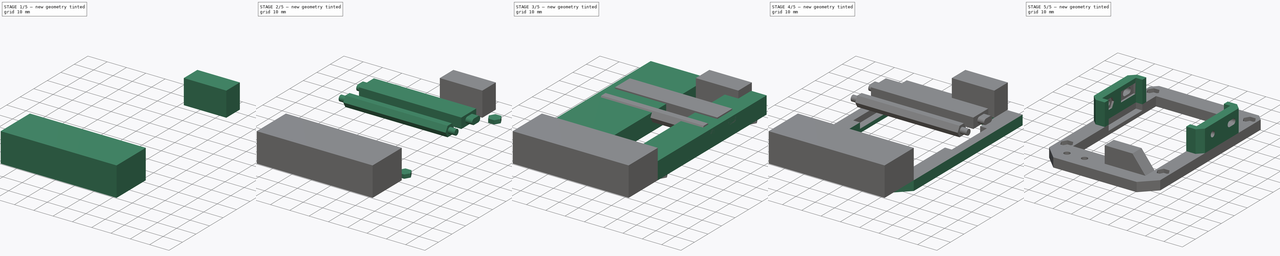
[diagram: build sequence overview — one tinted view per stage of 5, left to right]
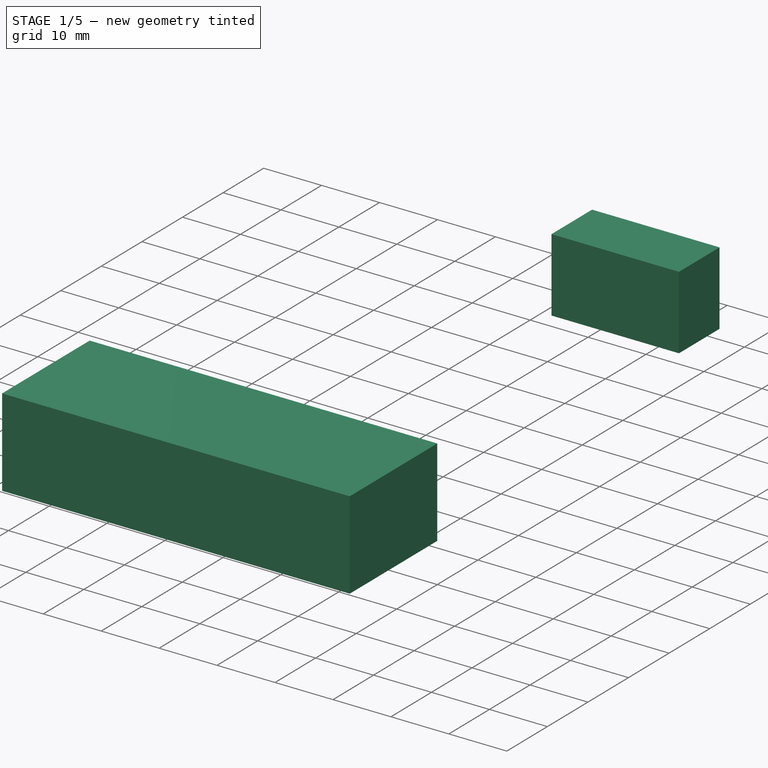
[diagram: stage 1 of 5 — iso view after this stage's code; geometry added in this stage tinted green]
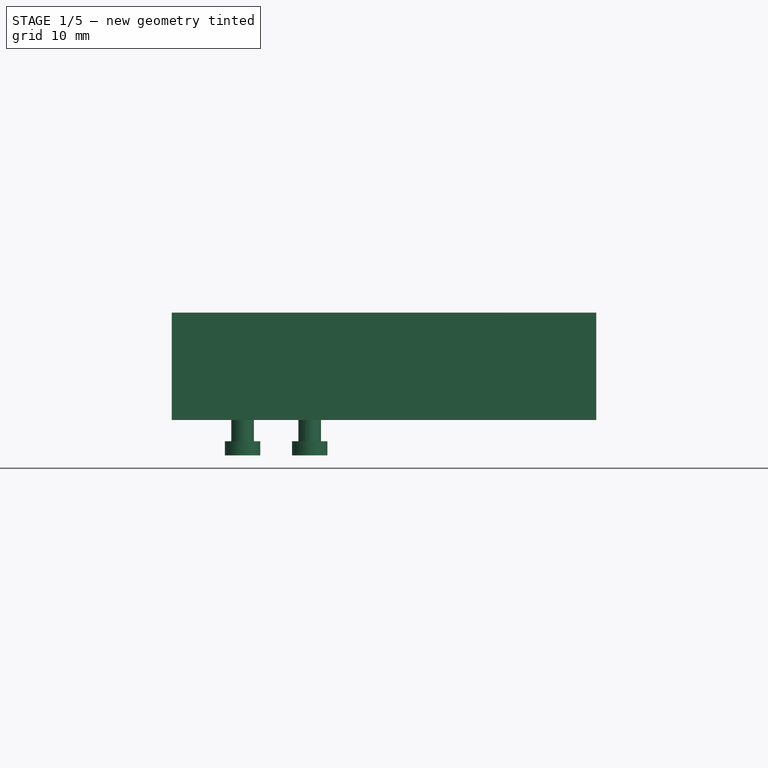
[diagram: stage 1 of 5 — front view after this stage's code; geometry added in this stage tinted green]
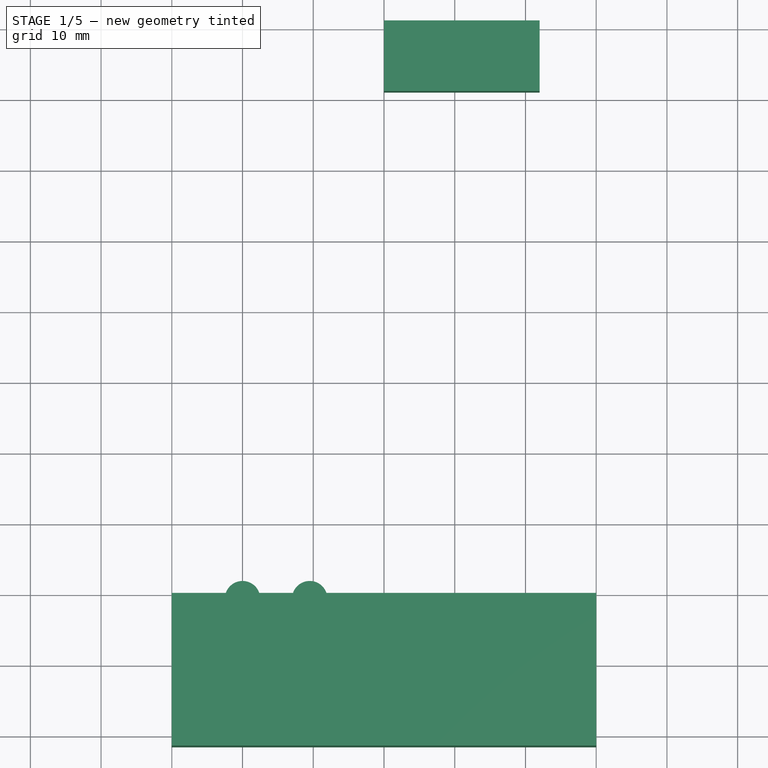
[diagram: stage 1 of 5 — top view after this stage's code; geometry added in this stage tinted green]
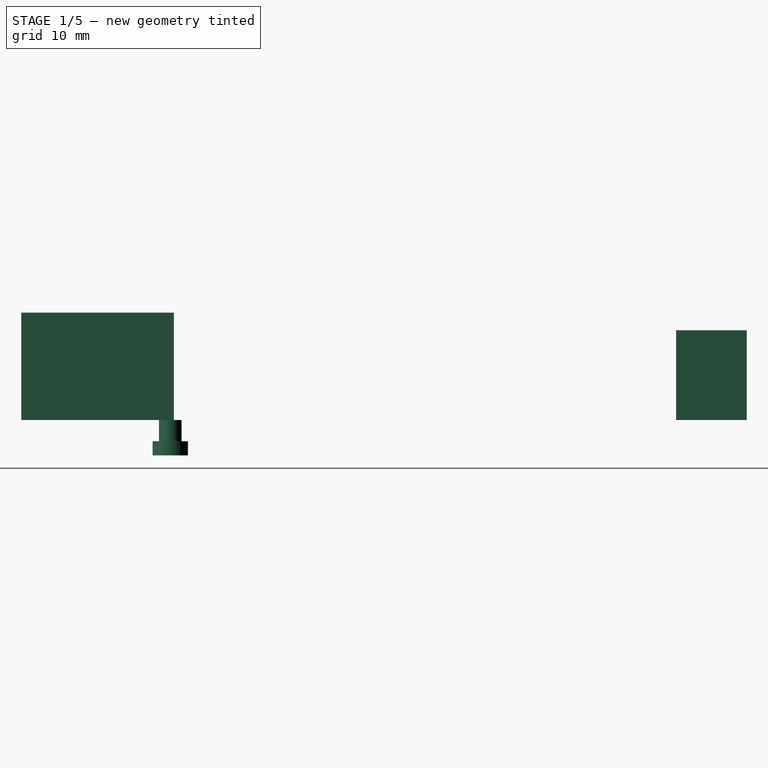
[diagram: stage 1 of 5 — right view after this stage's code; geometry added in this stage tinted green]
FCSTD DOCUMENT  (FreeCAD 0.16R6707 (Git))
Label: Peripheral
License: All rights reserved
LicenseURL: http://en.wikipedia.org/wiki/All_rights_reserved
objects: Sketcher::SketchObject×13, PartDesign::Pad×13, Part::MultiFuse×3, Drawing::FeatureViewPart×3, Part::Cut×2, PartDesign::Chamfer×1, Drawing::FeaturePage×1
note: 45 computed .brp shape members not serialized (recipe doc carries the construction recipe); baked Part::Feature solids carry a one-line shape summary decoded from their .brp

FEATURE [Sketcher::SketchObject] Sketch019  label="EndstopMountSK"
  sketch-geometry (2):
    g0: Circle CenterX=10 CenterY=-0.5 CenterZ=0 NormalX=0 NormalY=0 NormalZ=1 Radius=1.6
    g1: Circle CenterX=19.5 CenterY=-0.5 CenterZ=0 NormalX=0 NormalY=0 NormalZ=1 Radius=1.6
  constraints (6):
    c: Equal(g1,g0)
    c: Radius(g0) = 1.6
    c: DistanceX(g0,g1) = 9.5
    c: DistanceY(g0,g1) = 0
    c: DistanceX(g-1,g0) = 10
    c: DistanceY(g-1,g0) = -0.5
FEATURE [PartDesign::Pad] Pad012  label="EndstopMount"
  Length = 5
  Length2 = 100
  Sketch = -> Sketch019
  Type = 0
FEATURE [Sketcher::SketchObject] Sketch020
  sketch-geometry (2):
    g0: Circle CenterX=10 CenterY=-0.5 CenterZ=0 NormalX=0 NormalY=0 NormalZ=1 Radius=2.5
    g1: Circle CenterX=19.5 CenterY=-0.5 CenterZ=0 NormalX=0 NormalY=0 NormalZ=1 Radius=2.5
  constraints (6):
    c: DistanceX(g0,g1) = 9.5
    c: DistanceY(g1,g0) = 0
    c: DistanceX(g-1,g0) = 10
    c: DistanceY(g-1,g0) = -0.5
    c: Radius(g1) = 2.5
    c: Equal(g1,g0)
FEATURE [PartDesign::Pad] Pad013  label="EndtopFlush"
  Length = 2
  Length2 = 100
  Sketch = -> Sketch020
  Type = 0
FEATURE [Sketcher::SketchObject] Sketch021
  Placement = pos=(0,81,0) rot=(1,0,0;1.5708rad)
  sketch-geometry (4):
    g0: LineSegment StartX=30 StartY=17.705 StartZ=0 EndX=52 EndY=17.705 EndZ=0
    g1: LineSegment StartX=52 StartY=17.705 StartZ=0 EndX=52 EndY=5 EndZ=0
    g2: LineSegment StartX=52 StartY=5 StartZ=0 EndX=30 EndY=5 EndZ=0
    g3: LineSegment StartX=30 StartY=5 StartZ=0 EndX=30 EndY=17.705 EndZ=0
  constraints (11):
    c: Coincident(g0,g1)
    c: Coincident(g1,g2)
    c: Coincident(g2,g3)
    c: Coincident(g3,g0)
    c: Horizontal(g0)
    c: Horizontal(g2)
    c: Vertical(g1)
    c: Vertical(g3)
    c: DistanceY(g-1,g1) = 5
    c: DistanceX(g-1,g2) = 30
    c: DistanceX(g0,g0) = 22
FEATURE [PartDesign::Pad] Pad014
  Length = 10
  Length2 = 100
  Placement = pos=(0,81,0) rot=(1,0,0;1.5708rad)
  Sketch = -> Sketch021
  Type = 0
FEATURE [Sketcher::SketchObject] Sketch022
  Placement = pos=(0,0,0) rot=(0.57735,0.57735,0.57735;2.0944rad)
  sketch-geometry (4):
    g0: LineSegment StartX=-21.5839 StartY=20.1944 StartZ=0 EndX=0 EndY=20.1944 EndZ=0
    g1: LineSegment StartX=0 StartY=20.1944 StartZ=0 EndX=0 EndY=5 EndZ=0
    g2: LineSegment StartX=0 StartY=5 StartZ=0 EndX=-21.5839 EndY=5 EndZ=0
    g3: LineSegment StartX=-21.5839 StartY=5 StartZ=0 EndX=-21.5839 EndY=20.1944 EndZ=0
  constraints (10):
    c: Coincident(g0,g1)
    c: Coincident(g1,g2)
    c: Coincident(g2,g3)
    c: Coincident(g3,g0)
    c: Horizontal(g0)
    c: Horizontal(g2)
    c: Vertical(g1)
    c: Vertical(g3)
    c: PointOnObject(g1,g-2)
    c: DistanceY(g-1,g2) = 5
FEATURE [PartDesign::Pad] Pad015
  Length = 60
  Length2 = 100
  Placement = pos=(0,0,0) rot=(0.57735,0.57735,0.57735;2.0944rad)
  Sketch = -> Sketch022
  Type = 0
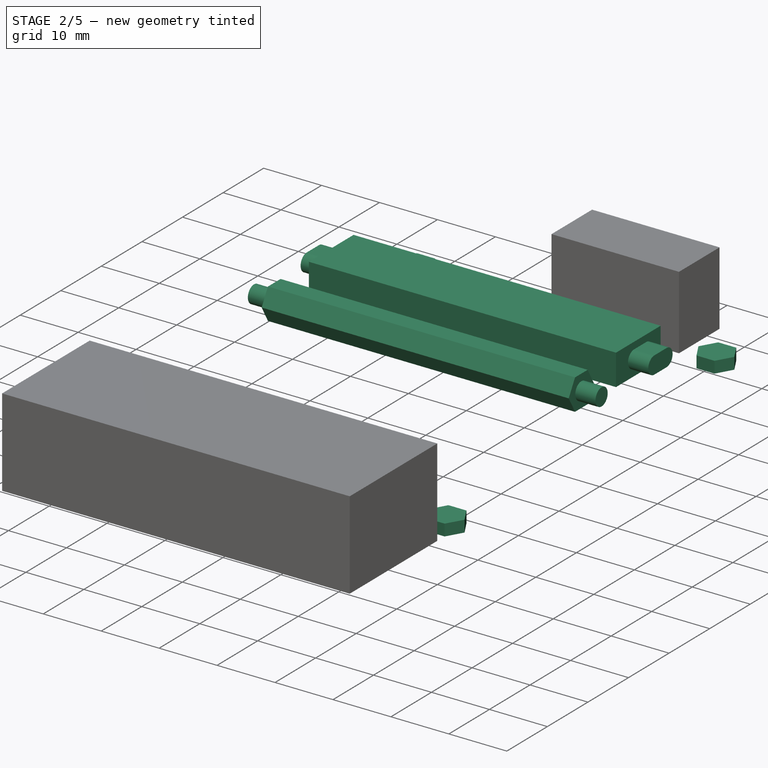
[diagram: stage 2 of 5 — iso view after this stage's code; geometry added in this stage tinted green]
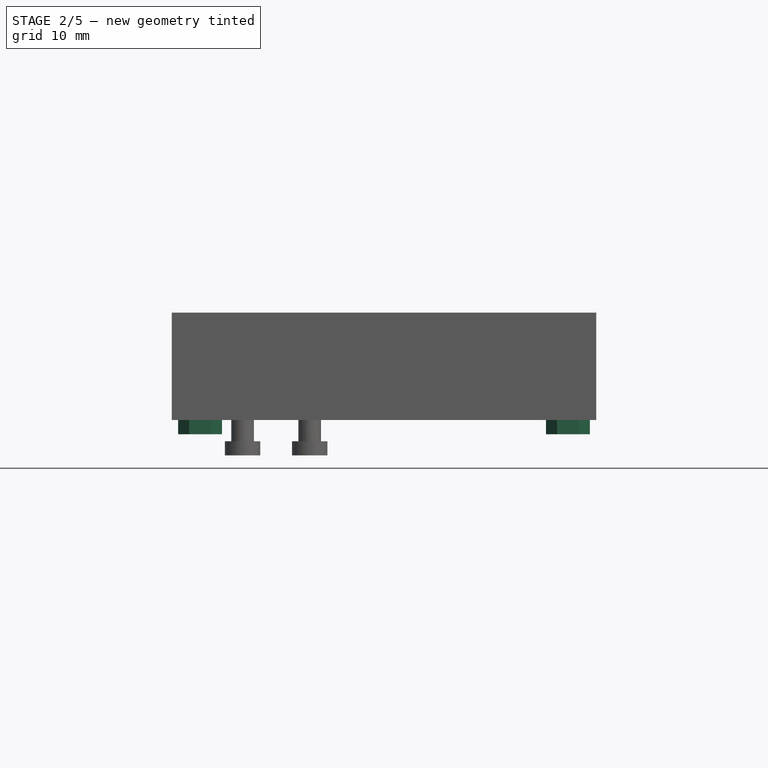
[diagram: stage 2 of 5 — front view after this stage's code; geometry added in this stage tinted green]
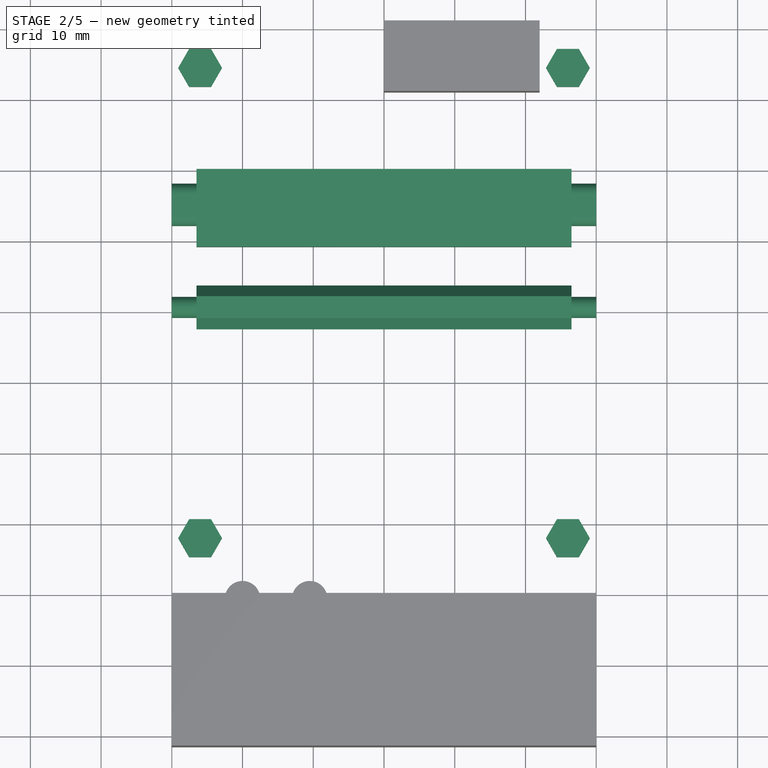
[diagram: stage 2 of 5 — top view after this stage's code; geometry added in this stage tinted green]
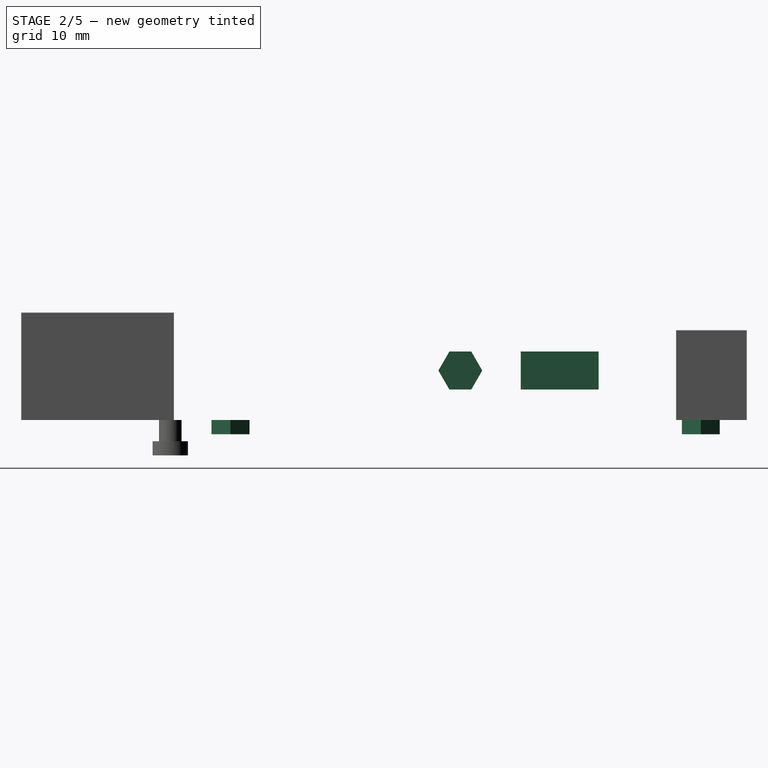
[diagram: stage 2 of 5 — right view after this stage's code; geometry added in this stage tinted green]
FEATURE [PartDesign::Pad] Pad008  label="BetlTensMount"
  Length = 60
  Length2 = 100
  Placement = pos=(0,0,0) rot=(0.57735,0.57735,0.57735;2.0944rad)
  Sketch = -> Sketch015
  Type = 0
FEATURE [Sketcher::SketchObject] Sketch006
  Placement = pos=(0,-9.25,3) rot=(0,0,1;0rad)
  sketch-geometry (28):
    g0: LineSegment StartX=5.55 StartY=86.4347 StartZ=0 EndX=2.45 EndY=86.4347 EndZ=0
    g1: LineSegment StartX=2.45 StartY=86.4347 StartZ=0 EndX=0.9 EndY=83.75 EndZ=0
    g2: LineSegment StartX=0.9 StartY=83.75 StartZ=0 EndX=2.45 EndY=81.0653 EndZ=0
    g3: LineSegment StartX=2.45 StartY=81.0653 StartZ=0 EndX=5.55 EndY=81.0653 EndZ=0
    g4: LineSegment StartX=5.55 StartY=81.0653 StartZ=0 EndX=7.1 EndY=83.75 EndZ=0
    g5: LineSegment StartX=7.1 StartY=83.75 StartZ=0 EndX=5.55 EndY=86.4347 EndZ=0
    g6: Circle [constr] CenterX=4 CenterY=83.75 CenterZ=0 NormalX=0 NormalY=0 NormalZ=1 Radius=3.1
    g7: LineSegment StartX=57.55 StartY=81.0653 StartZ=0 EndX=59.1 EndY=83.75 EndZ=0
    g8: LineSegment StartX=59.1 StartY=83.75 StartZ=0 EndX=57.55 EndY=86.4347 EndZ=0
    g9: LineSegment StartX=57.55 StartY=86.4347 StartZ=0 EndX=54.45 EndY=86.4347 EndZ=0
    g10: LineSegment StartX=54.45 StartY=86.4347 StartZ=0 EndX=52.9 EndY=83.75 EndZ=0
    g11: LineSegment StartX=52.9 StartY=83.75 StartZ=0 EndX=54.45 EndY=81.0653 EndZ=0
    g12: LineSegment StartX=54.45 StartY=81.0653 StartZ=0 EndX=57.55 EndY=81.0653 EndZ=0
    g13: Circle [constr] CenterX=56 CenterY=83.75 CenterZ=0 NormalX=0 NormalY=0 NormalZ=1 Radius=3.1
    g14: LineSegment StartX=0.9 StartY=17.25 StartZ=0 EndX=2.45 EndY=14.5653 EndZ=0
    g15: LineSegment StartX=2.45 StartY=14.5653 StartZ=0 EndX=5.55 EndY=14.5653 EndZ=0
    g16: LineSegment StartX=5.55 StartY=14.5653 StartZ=0 EndX=7.1 EndY=17.25 EndZ=0
    g17: LineSegment StartX=7.1 StartY=17.25 StartZ=0 EndX=5.55 EndY=19.9347 EndZ=0
    g18: LineSegment StartX=5.55 StartY=19.9347 StartZ=0 EndX=2.45 EndY=19.9347 EndZ=0
    g19: LineSegment StartX=2.45 StartY=19.9347 StartZ=0 EndX=0.9 EndY=17.25 EndZ=0
    g20: Circle [constr] CenterX=4 CenterY=17.25 CenterZ=0 NormalX=0 NormalY=0 NormalZ=1 Radius=3.1
    g21: LineSegment StartX=52.9 StartY=17.25 StartZ=0 EndX=54.45 EndY=14.5653 EndZ=0
    g22: LineSegment StartX=54.45 StartY=14.5653 StartZ=0 EndX=57.55 EndY=14.5653 EndZ=0
    g23: LineSegment StartX=57.55 StartY=14.5653 StartZ=0 EndX=59.1 EndY=17.25 EndZ=0
    g24: LineSegment StartX=59.1 StartY=17.25 StartZ=0 EndX=57.55 EndY=19.9347 EndZ=0
    g25: LineSegment StartX=57.55 StartY=19.9347 StartZ=0 EndX=54.45 EndY=19.9347 EndZ=0
    g26: LineSegment StartX=54.45 StartY=19.9347 StartZ=0 EndX=52.9 EndY=17.25 EndZ=0
    g27: Circle [constr] CenterX=56 CenterY=17.25 CenterZ=0 NormalX=0 NormalY=0 NormalZ=1 Radius=3.1
  constraints (68):
    c: Coincident(g0,g1)
    c: Coincident(g1,g2)
    c: Coincident(g2,g3)
    c: Coincident(g3,g4)
    c: Coincident(g4,g5)
    c: Coincident(g5,g0)
    c: Equal(g0, g1-g5) x5
    c: PointOnObject(g0,g6)
    c: PointOnObject(g1,g6)
    c: PointOnObject(g2,g6)
    c: PointOnObject(g3,g6)
    c: PointOnObject(g4,g6)
    c: PointOnObject(g5,g6)
    c: Coincident(g7,g8)
    c: Coincident(g8,g9)
    c: Coincident(g9,g10)
    c: Coincident(g10,g11)
    c: Coincident(g11,g12)
    c: Coincident(g12,g7)
    c: Equal(g7, g8-g12) x5
    c: PointOnObject(g7,g13)
    c: PointOnObject(g8,g13)
    c: PointOnObject(g9,g13)
    c: PointOnObject(g10,g13)
    c: PointOnObject(g11,g13)
    c: PointOnObject(g12,g13)
    c: Coincident(g14,g15)
    c: Coincident(g15,g16)
    c: Coincident(g16,g17)
    c: Coincident(g17,g18)
    c: Coincident(g18,g19)
    c: Coincident(g19,g14)
    c: Equal(g14, g15-g19) x5
    c: PointOnObject(g14,g20)
    c: PointOnObject(g15,g20)
    c: PointOnObject(g16,g20)
    c: PointOnObject(g17,g20)
    c: PointOnObject(g18,g20)
    c: PointOnObject(g19,g20)
    c: Coincident(g21,g22)
    c: Coincident(g22,g23)
    c: Coincident(g23,g24)
    c: Coincident(g24,g25)
    c: Coincident(g25,g26)
    c: Coincident(g26,g21)
    c: Equal(g21, g22-g26) x5
    c: PointOnObject(g21,g27)
    c: PointOnObject(g22,g27)
    c: PointOnObject(g23,g27)
    c: PointOnObject(g24,g27)
    c: PointOnObject(g25,g27)
    c: PointOnObject(g26,g27)
    c: DistanceY(g-1,g20) = 17.25
    c: DistanceX(g-1,g20) = 4
    c: DistanceX(g20,g27) = 52
    c: DistanceY(g27,g20) = 0
    c: DistanceX(g20,g6) = 0
    c: DistanceY(g20,g6) = 66.5
    c: DistanceY(g13,g6) = 0
    c: DistanceX(g27,g13) = 0
    c: Radius(g20) = 3.1
    c: Equal(g20,g27)
    c: Equal(g20,g13)
    c: Equal(g20,g6)
    c: Parallel(g18,g25)
    c: Parallel(g25,g0)
    c: Parallel(g0,g9)
    c: Parallel(g9,g-1)
FEATURE [PartDesign::Pad] Pad005  label="NutFlush"
  Length = 2
  Length2 = 100
  Placement = pos=(0,-9.25,3) rot=(0,0,1;0rad)
  Sketch = -> Sketch006
  Type = 0
FEATURE [Sketcher::SketchObject] Sketch018
  Placement = pos=(30,0,0) rot=(0.57735,0.57735,0.57735;2.0944rad)
  sketch-geometry (11):
    g0: LineSegment StartX=42.05 StartY=9.31532 StartZ=0 EndX=43.6 EndY=12 EndZ=0
    g1: LineSegment StartX=43.6 StartY=12 StartZ=0 EndX=42.05 EndY=14.6847 EndZ=0
    g2: LineSegment StartX=42.05 StartY=14.6847 StartZ=0 EndX=38.95 EndY=14.6847 EndZ=0
    g3: LineSegment StartX=38.95 StartY=14.6847 StartZ=0 EndX=37.4 EndY=12 EndZ=0
    g4: LineSegment StartX=37.4 StartY=12 StartZ=0 EndX=38.95 EndY=9.31532 EndZ=0
    g5: LineSegment StartX=38.95 StartY=9.31532 StartZ=0 EndX=42.05 EndY=9.31532 EndZ=0
    g6: Circle [constr] CenterX=40.5 CenterY=12 CenterZ=0 NormalX=0 NormalY=0 NormalZ=1 Radius=3.1
    g7: LineSegment StartX=49.05 StartY=14.6847 StartZ=0 EndX=60.05 EndY=14.6847 EndZ=0
    g8: LineSegment StartX=60.05 StartY=14.6847 StartZ=0 EndX=60.05 EndY=9.31532 EndZ=0
    g9: LineSegment StartX=60.05 StartY=9.31532 StartZ=0 EndX=49.05 EndY=9.31532 EndZ=0
    g10: LineSegment StartX=49.05 StartY=9.31532 StartZ=0 EndX=49.05 EndY=14.6847 EndZ=0
  constraints (29):
    c: Coincident(g0,g1)
    c: Coincident(g1,g2)
    c: Coincident(g2,g3)
    c: Coincident(g3,g4)
    c: Coincident(g4,g5)
    c: Coincident(g5,g0)
    c: Equal(g0, g1-g5) x5
    c: PointOnObject(g0,g6)
    c: PointOnObject(g1,g6)
    c: PointOnObject(g2,g6)
    c: PointOnObject(g3,g6)
    c: PointOnObject(g4,g6)
    c: PointOnObject(g5,g6)
    c: Coincident(g7,g8)
    c: Coincident(g8,g9)
    c: Coincident(g9,g10)
    c: Coincident(g10,g7)
    c: Horizontal(g7)
    c: Horizontal(g9)
    c: Vertical(g8)
    c: Vertical(g10)
    c: DistanceX(g-1,g6) = 40.5
    c: DistanceY(g-1,g6) = 12
    c: Parallel(g5,g-1)
    c: DistanceY(g9,g0) = 0
    c: DistanceY(g1,g7) = 0
    c: Radius(g6) = 3.1
    c: DistanceX(g7,g7) = 11
    c: DistanceX(g1,g7) = 7
FEATURE [PartDesign::Pad] Pad011  label="BeltTensionFlush"
  Length = 53
  Length2 = 100
  Midplane = true
  Placement = pos=(30,0,0) rot=(0.57735,0.57735,0.57735;2.0944rad)
  Sketch = -> Sketch018
  Type = 0
FEATURE [Part::MultiFuse] Fusion002  label="CutBlock02"
  Shapes = -> [Pad015,Pad014,Pad013,Pad008,Pad012,Pad005,Pad011]
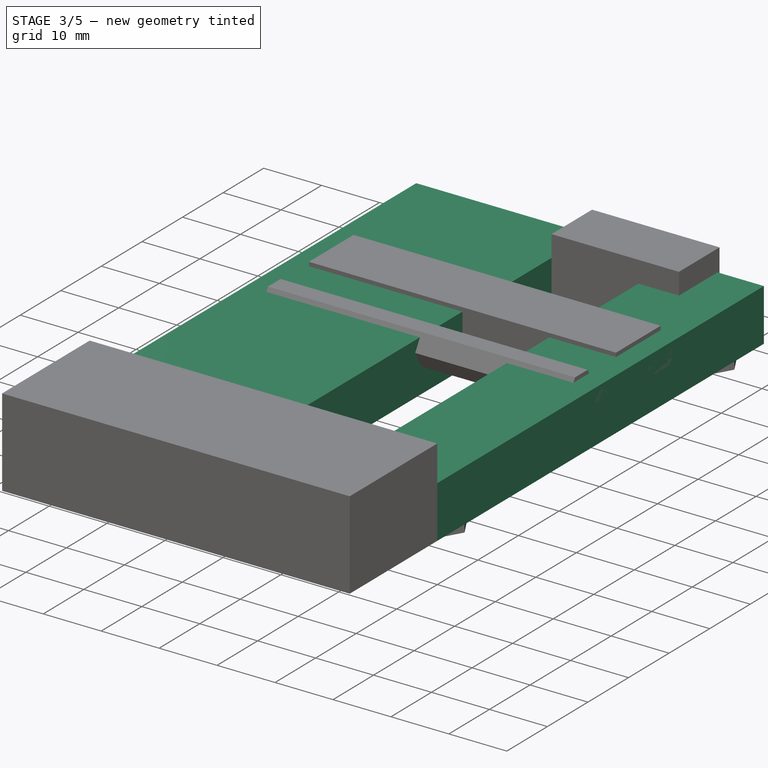
[diagram: stage 3 of 5 — iso view after this stage's code; geometry added in this stage tinted green]
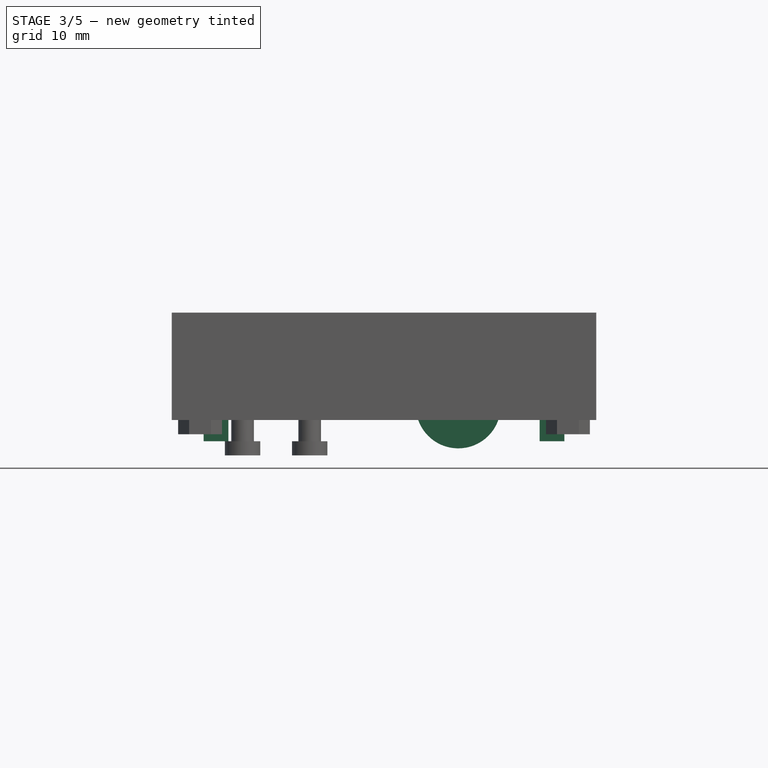
[diagram: stage 3 of 5 — front view after this stage's code; geometry added in this stage tinted green]
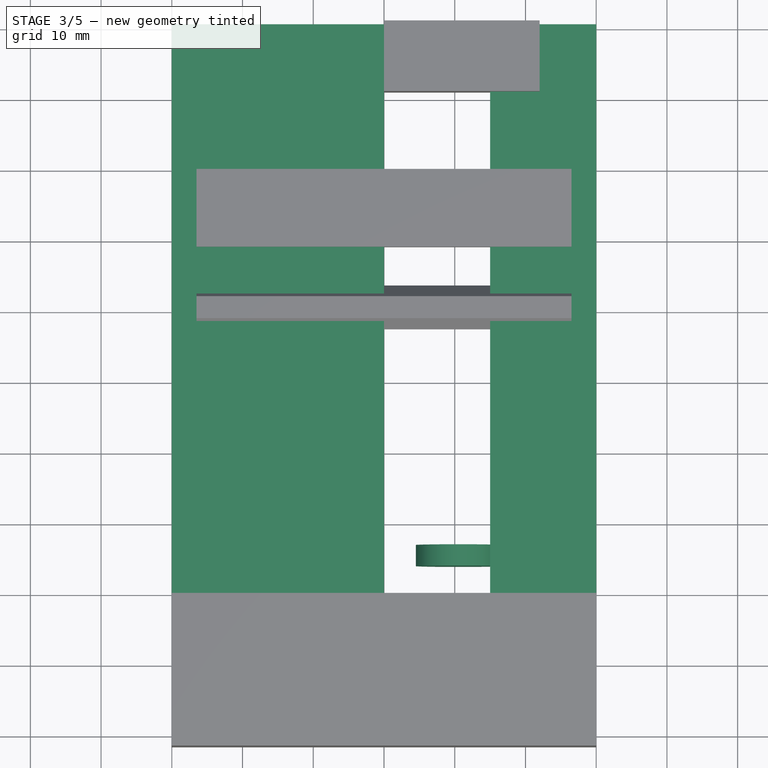
[diagram: stage 3 of 5 — top view after this stage's code; geometry added in this stage tinted green]
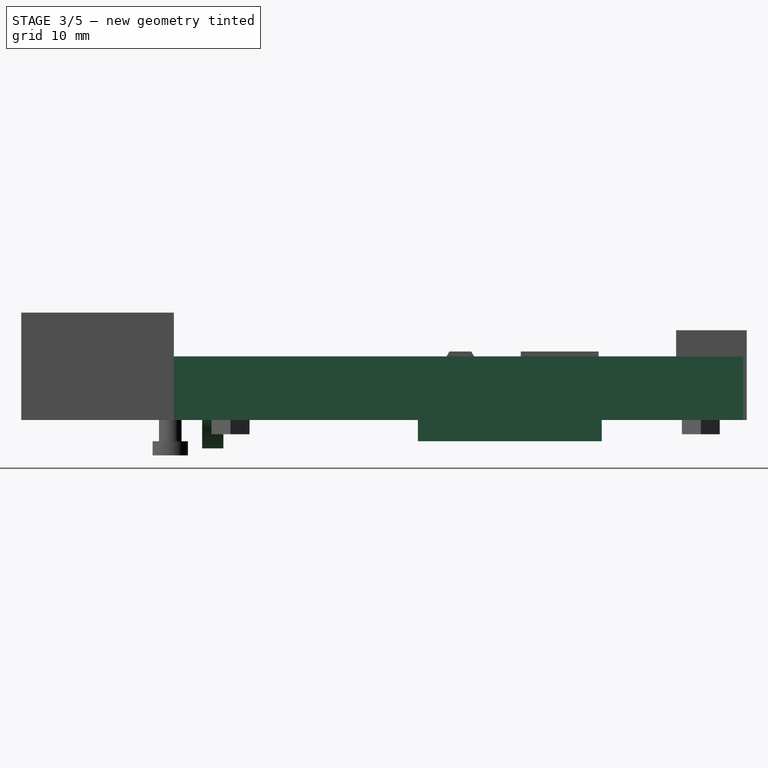
[diagram: stage 3 of 5 — right view after this stage's code; geometry added in this stage tinted green]
FEATURE [Sketcher::SketchObject] Sketch009  label="ProfileSK"
  Placement = pos=(0,0,0) rot=(1,0,0;1.5708rad)
  sketch-geometry (8):
    g0: LineSegment StartX=0 StartY=5 StartZ=0 EndX=30 EndY=5 EndZ=0
    g1: LineSegment StartX=30 StartY=5 StartZ=0 EndX=30 EndY=14 EndZ=0
    g2: LineSegment StartX=30 StartY=14 StartZ=0 EndX=0 EndY=14 EndZ=0
    g3: LineSegment StartX=0 StartY=14 StartZ=0 EndX=0 EndY=5 EndZ=0
    g4: LineSegment StartX=52 StartY=5 StartZ=0 EndX=45 EndY=14 EndZ=0
    g5: LineSegment StartX=45 StartY=14 StartZ=0 EndX=60 EndY=14 EndZ=0
    g6: LineSegment StartX=60 StartY=14 StartZ=0 EndX=60 EndY=5 EndZ=0
    g7: LineSegment StartX=60 StartY=5 StartZ=0 EndX=52 EndY=5 EndZ=0
  constraints (23):
    c: Coincident(g0,g1)
    c: Coincident(g1,g2)
    c: Horizontal(g2)
    c: Coincident(g2,g3)
    c: Coincident(g4,g5)
    c: Horizontal(g5)
    c: Coincident(g5,g6)
    c: Coincident(g6,g7)
    c: Coincident(g7,g4)
    c: Coincident(g3,g0)
    c: Vertical(g3)
    c: Horizontal(g0)
    c: Vertical(g6)
    c: Horizontal(g7)
    c: PointOnObject(g2,g-2)
    c: DistanceY(g-1,g2) = 14
    c: DistanceY(g-1,g5) = 14
    c: Equal(g6,g3)
    c: DistanceX(g-1,g6) = 60
    c: DistanceY(g3,g3) = 9
    c: DistanceX(g2,g2) = 30
    c: Equal(g0,g2)
    c: DistanceX(g5,g5) = 15
FEATURE [PartDesign::Pad] Pad002  label="Profile"
  Length = 80.5
  Length2 = 100
  Placement = pos=(0,0,0) rot=(1,0,0;1.5708rad)
  Reversed = true
  Sketch = -> Sketch009
  Type = 0
FEATURE [Sketcher::SketchObject] Sketch010  label="SpringSK"
  Placement = pos=(0,7,0) rot=(1,0,0;1.5708rad)
  sketch-geometry (1):
    g0: Circle CenterX=40.5 CenterY=7 CenterZ=0 NormalX=0 NormalY=0 NormalZ=1 Radius=6
  constraints (3):
    c: Radius(g0) = 6
    c: DistanceX(g-1,g0) = 40.5
    c: DistanceY(g-1,g0) = 7
FEATURE [PartDesign::Pad] Pad003  label="SpringHole"
  Length = 3
  Length2 = 100
  Placement = pos=(0,7,0) rot=(1,0,0;1.5708rad)
  Sketch = -> Sketch010
  Type = 0
FEATURE [Sketcher::SketchObject] Sketch013  label="BeltMountSK"
  Placement = pos=(0,0,5) rot=(0,0,1;0rad)
  sketch-geometry (8):
    g0: LineSegment StartX=4.5 StartY=60.5 StartZ=0 EndX=8 EndY=60.5 EndZ=0
    g1: LineSegment StartX=8 StartY=60.5 StartZ=0 EndX=8 EndY=34.5 EndZ=0
    g2: LineSegment StartX=8 StartY=34.5 StartZ=0 EndX=4.5 EndY=34.5 EndZ=0
    g3: LineSegment StartX=4.5 StartY=34.5 StartZ=0 EndX=4.5 EndY=60.5 EndZ=0
    g4: LineSegment StartX=52 StartY=60.5 StartZ=0 EndX=55.5 EndY=60.5 EndZ=0
    g5: LineSegment StartX=55.5 StartY=60.5 StartZ=0 EndX=55.5 EndY=34.5 EndZ=0
    g6: LineSegment StartX=55.5 StartY=34.5 StartZ=0 EndX=52 EndY=34.5 EndZ=0
    g7: LineSegment StartX=52 StartY=34.5 StartZ=0 EndX=52 EndY=60.5 EndZ=0
  constraints (24):
    c: Coincident(g0,g1)
    c: Coincident(g1,g2)
    c: Coincident(g2,g3)
    c: Coincident(g3,g0)
    c: Horizontal(g0)
    c: Horizontal(g2)
    c: Vertical(g1)
    c: Vertical(g3)
    c: Coincident(g4,g5)
    c: Coincident(g5,g6)
    c: Coincident(g6,g7)
    c: Coincident(g7,g4)
    c: Horizontal(g4)
    c: Horizontal(g6)
    c: Vertical(g5)
    c: Vertical(g7)
    c: DistanceX(g0,g0) = 3.5
    c: Equal(g4,g0)
    c: DistanceY(g-1,g2) = 34.5
    c: DistanceX(g-1,g2) = 4.5
    c: DistanceY(g6,g1) = 0
    c: DistanceX(g1,g6) = 44
    c: DistanceY(g1,g1) = 26
    c: Equal(g7,g1)
FEATURE [PartDesign::Pad] Pad006  label="BeltTensioner"
  Length = 3
  Length2 = 100
  Placement = pos=(0,0,5) rot=(0,0,1;0rad)
  Reversed = true
  Sketch = -> Sketch013
  Type = 0
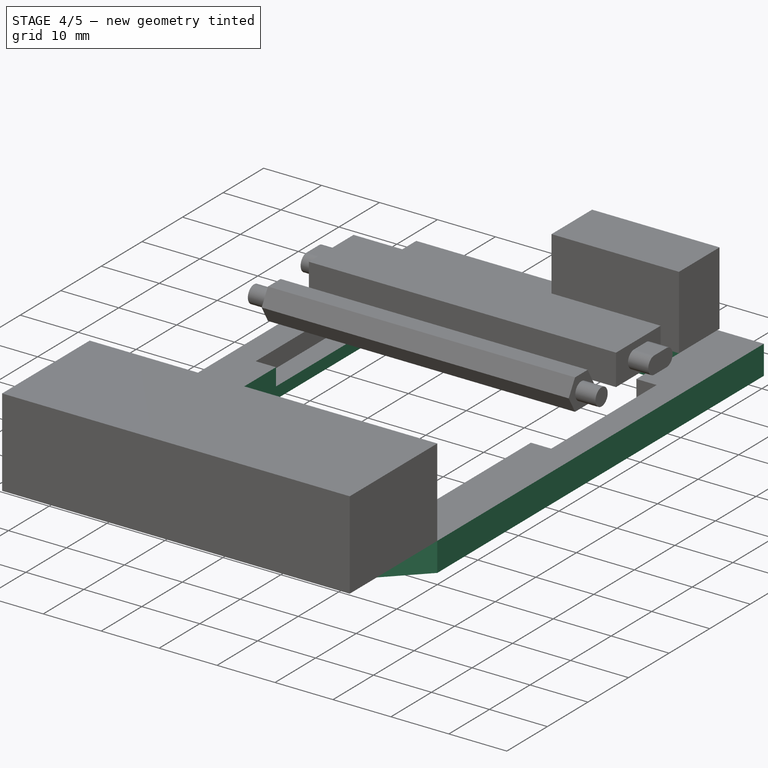
[diagram: stage 4 of 5 — iso view after this stage's code; geometry added in this stage tinted green]
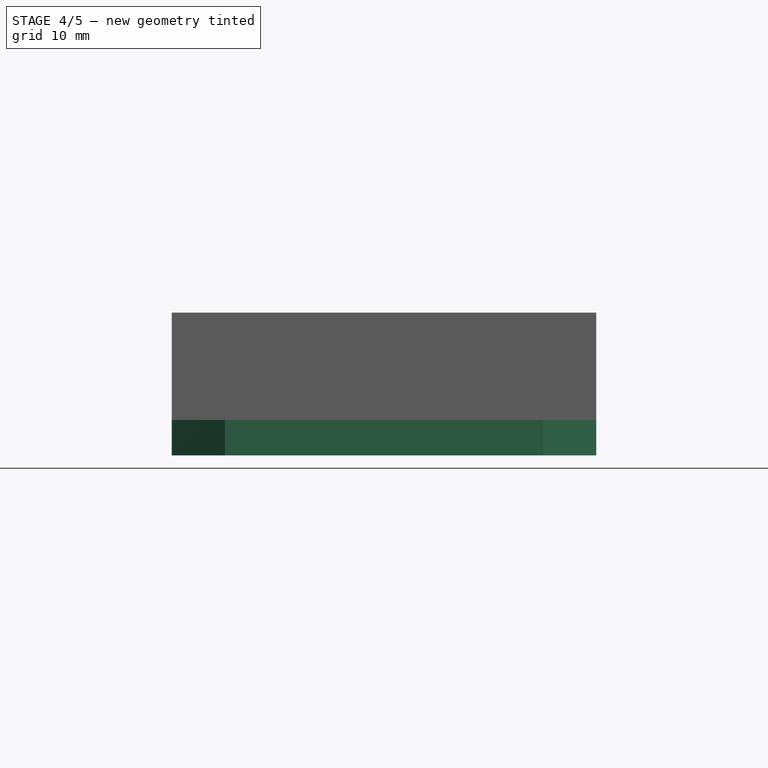
[diagram: stage 4 of 5 — front view after this stage's code; geometry added in this stage tinted green]
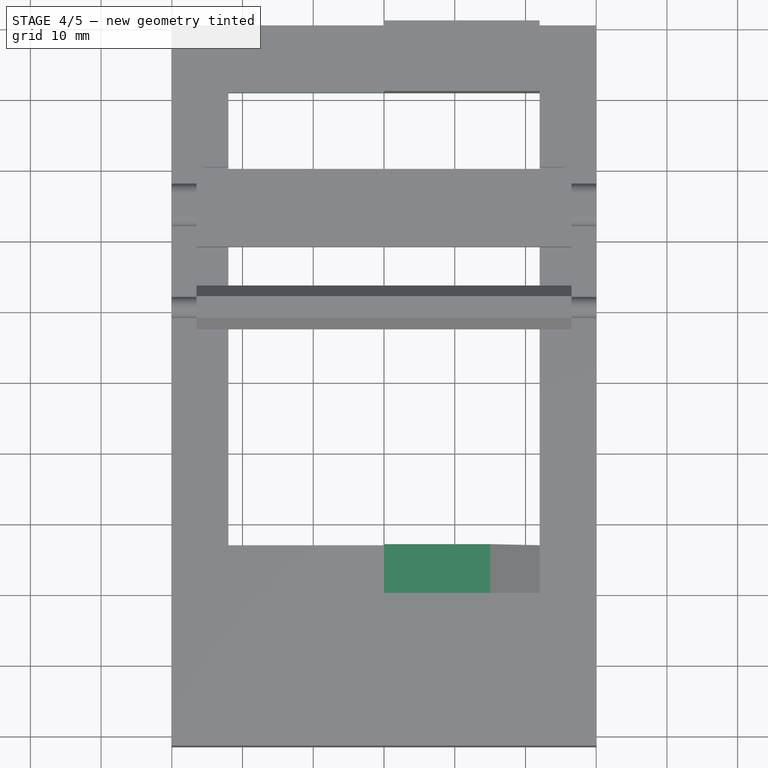
[diagram: stage 4 of 5 — top view after this stage's code; geometry added in this stage tinted green]
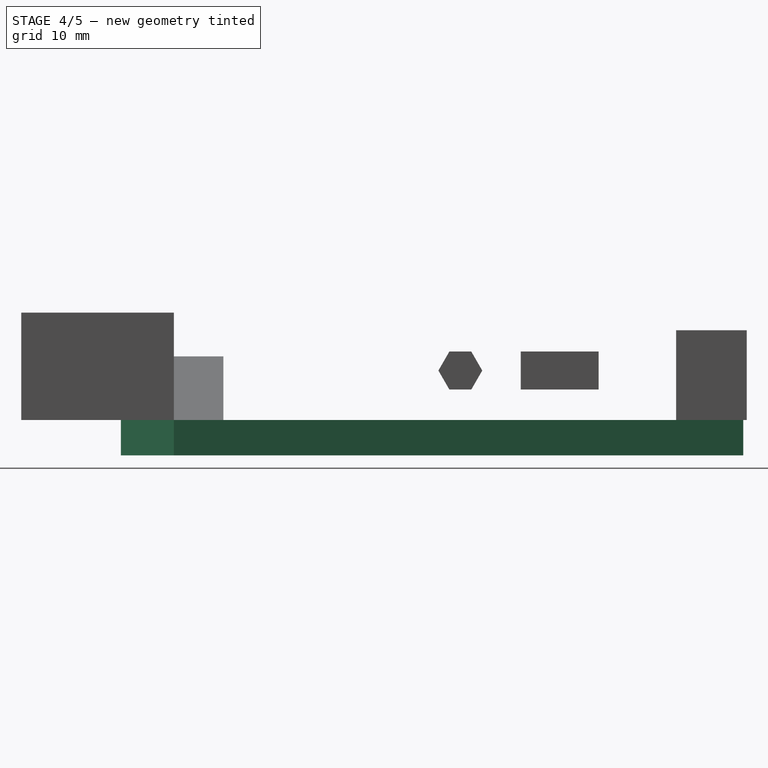
[diagram: stage 4 of 5 — right view after this stage's code; geometry added in this stage tinted green]
FEATURE [Sketcher::SketchObject] Sketch  label="BaseSK"
  sketch-geometry (10):
    g0: LineSegment StartX=8 StartY=71 StartZ=0 EndX=8 EndY=7 EndZ=0
    g1: LineSegment StartX=8 StartY=7 StartZ=0 EndX=52 EndY=7 EndZ=0
    g2: LineSegment StartX=52 StartY=7 StartZ=0 EndX=52 EndY=71 EndZ=0
    g3: LineSegment StartX=60 StartY=80.5 StartZ=0 EndX=60 EndY=0 EndZ=0
    g4: LineSegment StartX=0 StartY=0 StartZ=0 EndX=0 EndY=80.5 EndZ=0
    g5: LineSegment StartX=0 StartY=80.5 StartZ=0 EndX=60 EndY=80.5 EndZ=0
    g6: LineSegment StartX=8 StartY=71 StartZ=0 EndX=52 EndY=71 EndZ=0
    g7: LineSegment StartX=0 StartY=0 StartZ=0 EndX=7.5 EndY=-7.5 EndZ=0
    g8: LineSegment StartX=7.5 StartY=-7.5 StartZ=0 EndX=52.5 EndY=-7.5 EndZ=0
    g9: LineSegment StartX=52.5 StartY=-7.5 StartZ=0 EndX=60 EndY=0 EndZ=0
  constraints (30):
    c: Vertical(g0)
    c: Coincident(g0,g1)
    c: Horizontal(g1)
    c: Coincident(g1,g2)
    c: Vertical(g2)
    c: Vertical(g3)
    c: Vertical(g4)
    c: Equal(g2,g0)
    c: DistanceX(g4,g0) = 8
    c: DistanceX(g4,g3) = 60
    c: DistanceY(g-1,g0) = 7
    c: DistanceY(g0,g0) = 64
    c: Horizontal(g5)
    c: Horizontal(g6)
    c: Coincident(g6,g2)
    c: Coincident(g6,g0)
    c: Coincident(g4,g5)
    c: Coincident(g3,g5)
    c: DistanceY(g4,g4) = 80.5
    c: DistanceX(g6,g6) = 44
    c: Coincident(g7,g8)
    c: Horizontal(g8)
    c: Coincident(g8,g9)
    c: Coincident(g9,g3)
    c: PointOnObject(g3,g-1)
    c: Coincident(g7,g-1)
    c: Equal(g9,g7)
    c: Coincident(g4,g-1)
    c: DistanceX(g8,g8) = 45
    c: DistanceY(g8,g-1) = 7.5
FEATURE [PartDesign::Pad] Pad  label="Base"
  Length = 14
  Length2 = 100
  Sketch = -> Sketch
  Type = 0
FEATURE [Sketcher::SketchObject] Sketch008  label="MountSK"
  sketch-geometry (4):
    g0: Circle CenterX=4 CenterY=8 CenterZ=0 NormalX=0 NormalY=0 NormalZ=1 Radius=1.4
    g1: Circle CenterX=56 CenterY=8 CenterZ=0 NormalX=0 NormalY=0 NormalZ=1 Radius=1.4
    g2: Circle CenterX=4 CenterY=74.5 CenterZ=0 NormalX=0 NormalY=0 NormalZ=1 Radius=1.4
    g3: Circle CenterX=56 CenterY=74.5 CenterZ=0 NormalX=0 NormalY=0 NormalZ=1 Radius=1.4
  constraints (12):
    c: DistanceX(g0,g1) = 52
    c: Radius(g0) = 1.4
    c: Equal(g0,g1)
    c: DistanceX(g-1,g0) = 4
    c: DistanceY(g-1,g0) = 8
    c: DistanceY(g0,g1) = 0
    c: DistanceY(g2,g3) = 0
    c: Equal(g2,g3)
    c: Equal(g3,g1)
    c: DistanceX(g0,g2) = 0
    c: DistanceY(g0,g2) = 66.5
    c: DistanceX(g3,g1) = 0
FEATURE [PartDesign::Pad] Pad001  label="MountHole"
  Length = 14
  Length2 = 100
  Sketch = -> Sketch008
  Type = 0
FEATURE [Part::MultiFuse] Fusion001  label="CutBlocks"
  Shapes = -> [Pad006,Pad003,Pad002,Pad001]
FEATURE [Part::Cut] Cut
  Base = -> Pad
  Tool = -> Fusion001
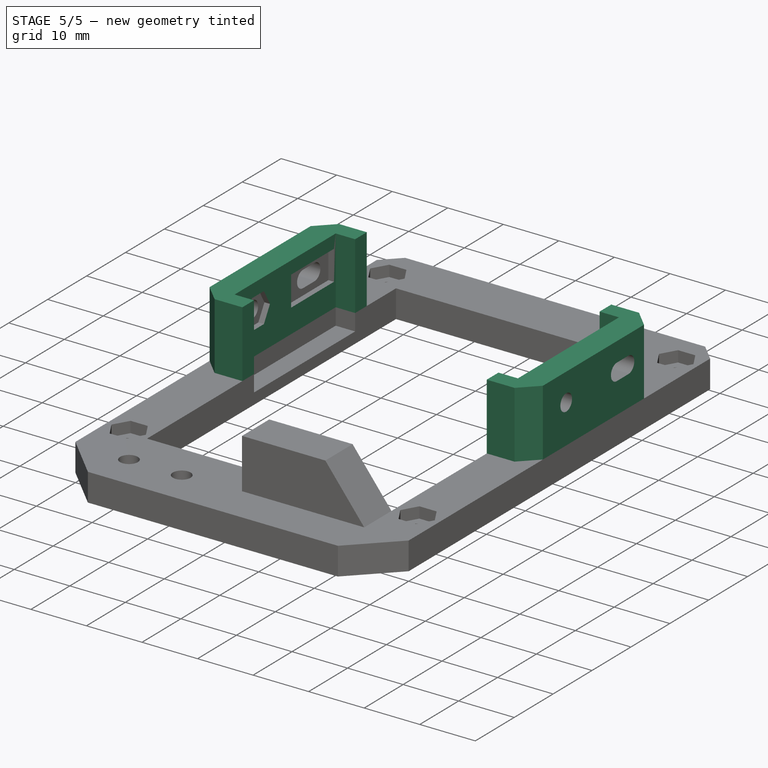
[diagram: stage 5 of 5 — iso view after this stage's code; geometry added in this stage tinted green]
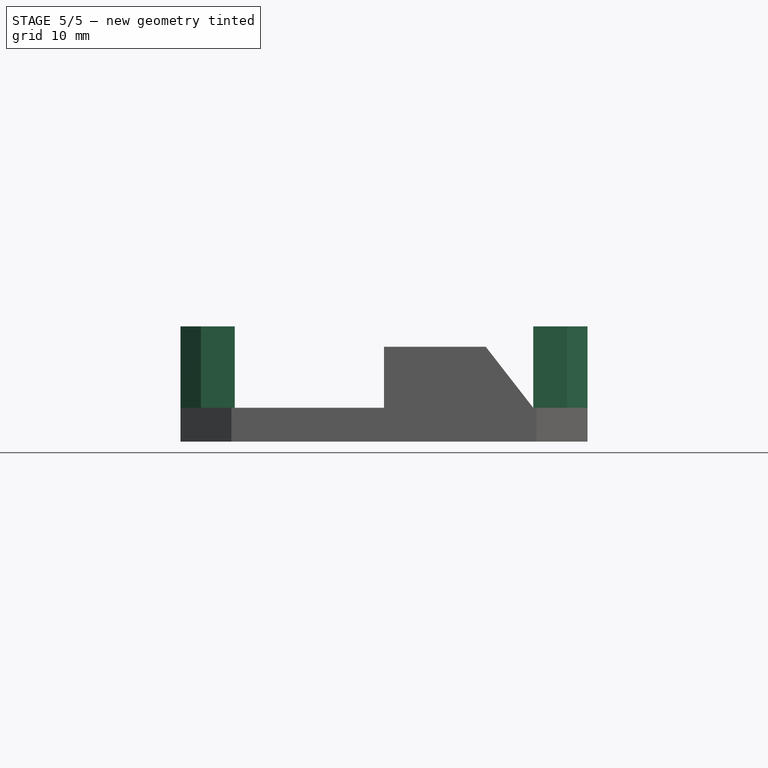
[diagram: stage 5 of 5 — front view after this stage's code; geometry added in this stage tinted green]
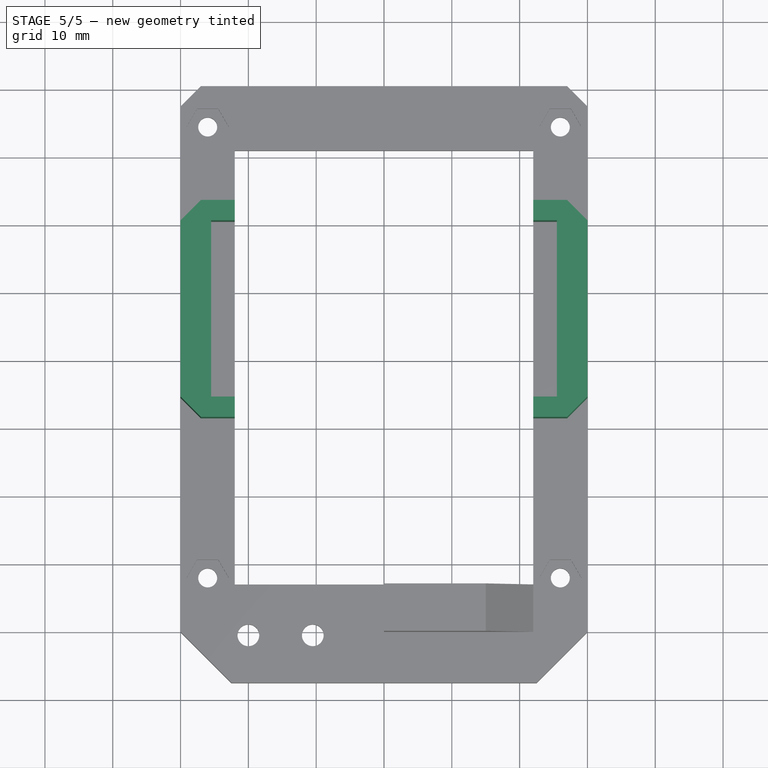
[diagram: stage 5 of 5 — top view after this stage's code; geometry added in this stage tinted green]
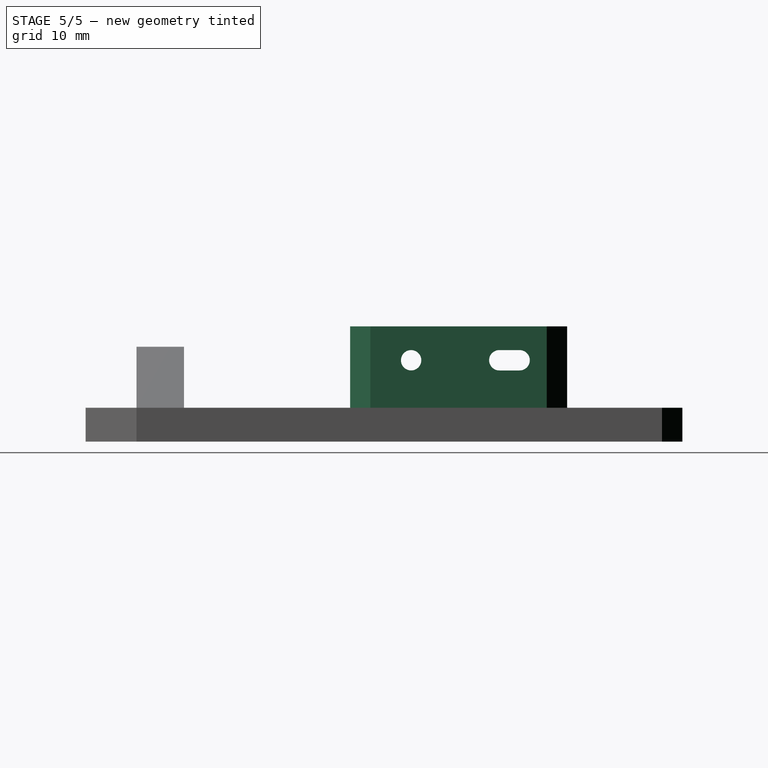
[diagram: stage 5 of 5 — right view after this stage's code; geometry added in this stage tinted green]
FEATURE [Sketcher::SketchObject] Sketch014  label="BeltTensSK"
  Placement = pos=(0,0,5) rot=(0,0,1;0rad)
  sketch-geometry (16):
    g0: LineSegment StartX=4.5 StartY=60.5 StartZ=0 EndX=4.5 EndY=34.5 EndZ=0
    g1: LineSegment StartX=0 StartY=31.5 StartZ=0 EndX=0 EndY=63.5 EndZ=0
    g2: LineSegment StartX=55.5 StartY=60.5 StartZ=0 EndX=55.5 EndY=34.5 EndZ=0
    g3: LineSegment StartX=60 StartY=31.5 StartZ=0 EndX=60 EndY=63.5 EndZ=0
    g4: LineSegment StartX=0 StartY=31.5 StartZ=0 EndX=8 EndY=31.5 EndZ=0
    g5: LineSegment StartX=8 StartY=31.5 StartZ=0 EndX=8 EndY=34.5 EndZ=0
    g6: LineSegment StartX=8 StartY=34.5 StartZ=0 EndX=4.5 EndY=34.5 EndZ=0
    g7: LineSegment StartX=0 StartY=63.5 StartZ=0 EndX=8 EndY=63.5 EndZ=0
    g8: LineSegment StartX=8 StartY=63.5 StartZ=0 EndX=8 EndY=60.5 EndZ=0
    g9: LineSegment StartX=8 StartY=60.5 StartZ=0 EndX=4.5 EndY=60.5 EndZ=0
    g10: LineSegment StartX=60 StartY=31.5 StartZ=0 EndX=52 EndY=31.5 EndZ=0
    g11: LineSegment StartX=52 StartY=31.5 StartZ=0 EndX=52 EndY=34.5 EndZ=0
    g12: LineSegment StartX=52 StartY=34.5 StartZ=0 EndX=55.5 EndY=34.5 EndZ=0
    g13: LineSegment StartX=55.5 StartY=60.5 StartZ=0 EndX=52 EndY=60.5 EndZ=0
    g14: LineSegment StartX=52 StartY=60.5 StartZ=0 EndX=52 EndY=63.5 EndZ=0
    g15: LineSegment StartX=52 StartY=63.5 StartZ=0 EndX=60 EndY=63.5 EndZ=0
  constraints (48):
    c: Vertical(g0)
    c: Vertical(g1)
    c: Vertical(g2)
    c: Vertical(g3)
    c: PointOnObject(g1,g-2)
    c: Equal(g0,g2)
    c: DistanceX(g-1,g3) = 60
    c: DistanceX(g1,g0) = 4.5
    c: Coincident(g4,g5)
    c: Coincident(g5,g6)
    c: Horizontal(g4)
    c: Vertical(g5)
    c: DistanceX(g4,g4) = 8
    c: DistanceY(g0,g0) = 26
    c: Horizontal(g7)
    c: Coincident(g7,g8)
    c: Coincident(g8,g9)
    c: Horizontal(g9)
    c: Vertical(g8)
    c: DistanceY(g-1,g0) = 60.5
    c: Coincident(g1,g7)
    c: Coincident(g9,g0)
    c: DistanceY(g0,g2) = 0
    c: Horizontal(g6)
    c: Coincident(g1,g4)
    c: Coincident(g0,g6)
    c: Equal(g5,g8)
    c: DistanceY(g8,g8) = 3
    c: Horizontal(g10)
    c: Coincident(g10,g11)
    c: Coincident(g11,g12)
    c: Coincident(g13,g14)
    c: Coincident(g14,g15)
    c: Horizontal(g15)
    c: Horizontal(g13)
    c: Vertical(g14)
    c: Horizontal(g12)
    c: Vertical(g11)
    c: Coincident(g2,g12)
    c: Coincident(g3,g10)
    c: Coincident(g2,g13)
    c: Coincident(g15,g3)
    c: Equal(g15,g10)
    c: Equal(g10,g4)
    c: Equal(g4,g7)
    c: Equal(g14,g11)
    c: Equal(g11,g8)
    c: Equal(g13,g9)
FEATURE [Sketcher::SketchObject] Sketch015  label="BeltTensHSK"
  Placement = pos=(0,0,0) rot=(0.57735,0.57735,0.57735;2.0944rad)
  sketch-geometry (5):
    g0: Circle CenterX=40.5 CenterY=12 CenterZ=0 NormalX=0 NormalY=0 NormalZ=1 Radius=1.5
    g1: ArcOfCircle CenterX=53.5 CenterY=12 CenterZ=0 NormalX=0 NormalY=0 NormalZ=1 Radius=1.5 StartAngle=1.5708 EndAngle=4.71239
    g2: ArcOfCircle CenterX=56.5 CenterY=12 CenterZ=0 NormalX=0 NormalY=0 NormalZ=1 Radius=1.5 StartAngle=4.71239 EndAngle=7.85398
    g3: LineSegment StartX=53.5 StartY=10.5 StartZ=0 EndX=56.5 EndY=10.5 EndZ=0
    g4: LineSegment StartX=53.5 StartY=13.5 StartZ=0 EndX=56.5 EndY=13.5 EndZ=0
  constraints (13):
    c: DistanceY(g-1,g0) = 12
    c: DistanceX(g-1,g0) = 40.5
    c: Tangent(g1,g4) = 1.5708
    c: Tangent(g1,g3) = -1.5708
    c: Tangent(g3,g2) = -1.5708
    c: Tangent(g4,g2) = 1.5708
    c: Horizontal(g3)
    c: Equal(g1,g2)
    c: Radius(g1) = 1.5
    c: Equal(g1,g0)
    c: DistanceY(g0,g1) = 0
    c: DistanceX(g1,g2) = 3
    c: DistanceX(g0,g1) = 13
FEATURE [PartDesign::Pad] Pad007  label="BeltTensLip"
  Length = 12
  Length2 = 100
  Placement = pos=(0,0,5) rot=(0,0,1;0rad)
  Sketch = -> Sketch014
  Type = 0
FEATURE [Part::MultiFuse] Fusion  label="BaseBlock02"
  Shapes = -> [Pad007,Cut]
FEATURE [Part::Cut] Cut001
  Base = -> Fusion
  Tool = -> Fusion002
FEATURE [PartDesign::Chamfer] Chamfer
  Base = -> Cut001 [Edge154,Edge221,Edge29,Edge82,Edge219,Edge26]
  Size = 3
FEATURE [Drawing::FeatureViewPart] Ortho  label="Ortho_0_0"
  Direction = (1,0,0)
  HiddenWidth = 0.15
  LineWidth = 0.35
  Rotation = -90
  Scale = 2
  ShowHiddenLines = false
  ShowSmoothLines = false
  Source = -> Chamfer
  Tolerance = 0.05
  ViewResult = <g id="Ortho_0_0"\n   transform="rotate(-90,66.3333,206) translate(66.3333,206) scale(2,2)"\n  >\n<g   stroke="rgb(0, 0, 0)"\n   stroke-width="0.175"\n   stroke-linecap="butt"\n   stroke-linejoin="miter"\n   fill="none"\n   transform="scale(1,-1)"\n  >\n<path id= "1" d=" M 17 -31.5 L 17 -34.5 " />\n<path id= "2" d=" M 17 -34.5 L 17 -60.5 " />\n<path id= "3" d=" M 17 -60.5 L 17 -63.5 " />\n<path id= "4" d=" M 5 -31.5 L 17 -31.5 " />\n<path id= "5" d=" M 5 -34.5 L 17 -34.5 " />\n<path id= "6" d=" M 5 -34.5 L 5 -60.5 " />\n<path id= "7" d=" M 5 -60.5 L 17 -60.5 " />\n<circle cx ="12" cy ="-40.5" r ="1.5" /><path d="M13.5 -53.5 A1.5 1.5 0 0 1 10.5 -53.5" /><path id= "10" d=" M 13.5 -53.5 L 13.5 -56.5 " />\n<path d="M10.5 -56.5 A1.5 1.5 0 0 1 13.5 -56.5" /><path id= "12" d=" M 10.5 -53.5 L 10.5 -56.5 " />\n<path id= "13" d=" M 5 -63.5 L 17 -63.5 " />\n<path id= "14" d=" M 5 -31.5 L 5 -34.5 " />\n<path id= "15" d=" M 5 1.92229e-15 L 5 -7 " />\n<path id= "16" d=" M 5 1.92229e-15 L 5 -31.5 " />\n<path id= "17" d=" M 0 -77.5 L 0 0 " />\n<path id= "18" d=" M 0 -77.5 L 5 -77.5 " />\n<path id= "19" d=" M 0 0 L 5 0 " />\n<path id= "20" d=" M 5 -63.5 L 5 -77.5 " />\n<path id= "21" d=" M 5 -60.5 L 5 -63.5 " />\n<path id= "22" d=" M 5 -77.5 L 5 -80.5 " />\n<path id= "23" d=" M 5 1.67347e-15 L 14 4.6857e-15 " />\n<path id= "24" d=" M 14 5.38241e-15 L 14 -7 " />\n<path id= "25" d=" M 14 -7 L 5 -7 " />\n<path id= "26" d=" M 5 -3.55271e-15 L 5 7.5 " />\n<path id= "27" d=" M 0 -77.5 L 0 -80.5 " />\n<path id= "28" d=" M 0 7.5 L 0 -8.88178e-16 " />\n<path id= "29" d=" M 0 -80.5 L 5 -80.5 " />\n<path id= "30" d=" M 0 7.5 L 5 7.5 " />\n<path id= "31" d=" M 5 -63.5 L 5 -71 " />\n<path id= "32" d=" M 5 -31.5 L 17 -31.5 " />\n<path id= "33" d=" M 17 -63.5 L 17 -60.5 " />\n<path id= "34" d=" M 17 -31.5 L 17 -34.5 " />\n<circle cx ="12" cy ="-40.5" r ="1.5" /><path d="M10.5 -53.5 A1.5 1.5 0 0 0 13.5 -53.5" /><path d="M13.5 -56.5 A1.5 1.5 0 0 0 10.5 -56.5" /></g>\n</g>
  Visible = true
  X = 66.3333
  Y = 206
FEATURE [Drawing::FeatureViewPart] Ortho001  label="Ortho_0_1"
  Direction = (0,0,1)
  HiddenWidth = 0.15
  LineWidth = 0.35
  Rotation = 90
  Scale = 2
  ShowHiddenLines = false
  ShowSmoothLines = false
  Source = -> Chamfer
  Tolerance = 0.05
  ViewResult = <blob: 6094 chars omitted>
  Visible = true
  X = 66.3333
  Y = 31
FEATURE [Drawing::FeatureViewPart] Ortho002  label="Ortho_1_1"
  Direction = (0.211384,0.78855,0.5775)
  HiddenWidth = 0.15
  LineWidth = 0.35
  Rotation = -98.8
  Scale = 2
  ShowHiddenLines = false
  ShowSmoothLines = false
  Source = -> Chamfer
  Tolerance = 0.05
  ViewResult = <blob: 12048 chars omitted>
  Visible = true
  X = 357.719
  Y = 55.1871
FEATURE [Drawing::FeaturePage] Page
  EditableTexts = DAMIAN DURCZOK | PERIPHERAL | This part attaches to the X-Carrage and  | provides rigid support for the extruder  | lever with a spring and it includes an endstop |  and adjustable belt  mounts. | A3 | X / Y | SCALE | PN | DN | 8/05/2017 | REV A
  Group = -> [Ortho,Ortho001,Ortho002]
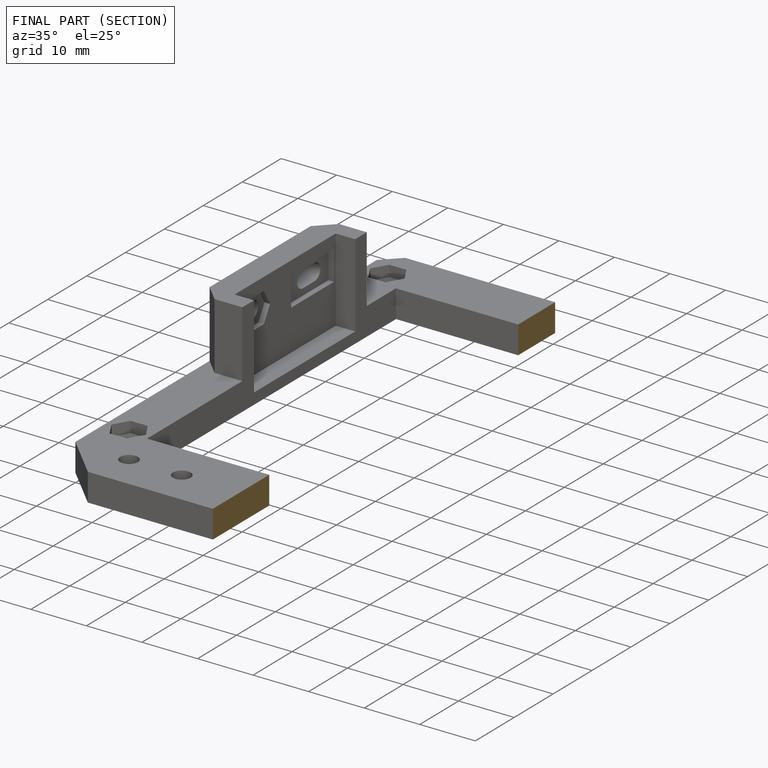
[diagram: finished part — half-section view (interior)]
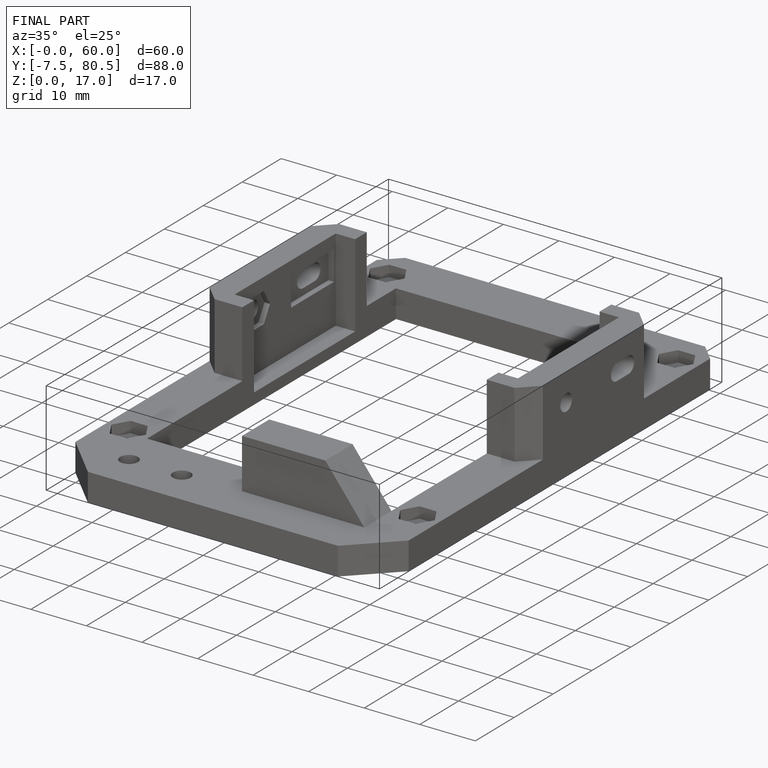
[diagram: finished part — iso view with bounding-box wireframe]
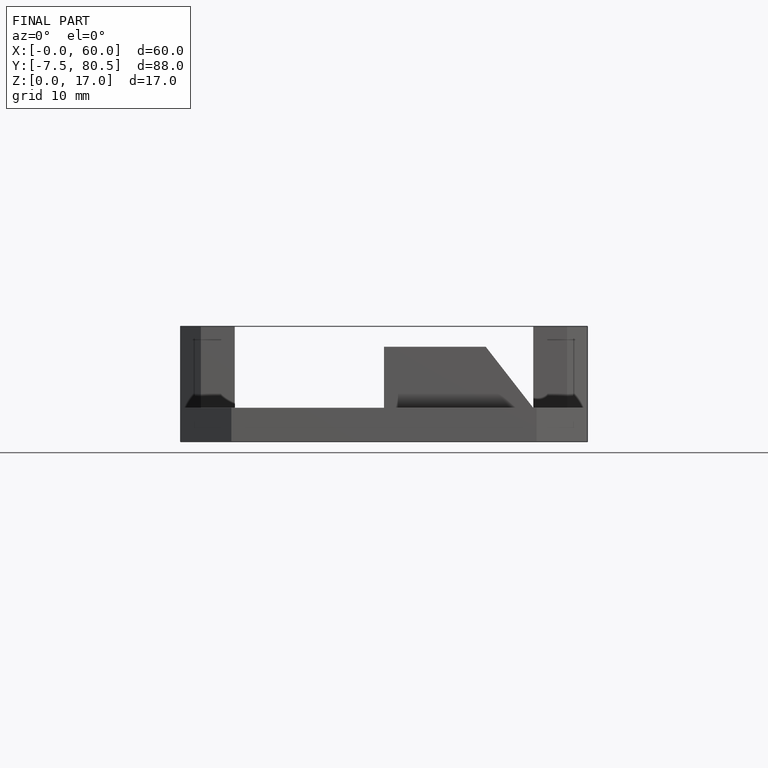
[diagram: finished part — front view with bounding-box wireframe]
